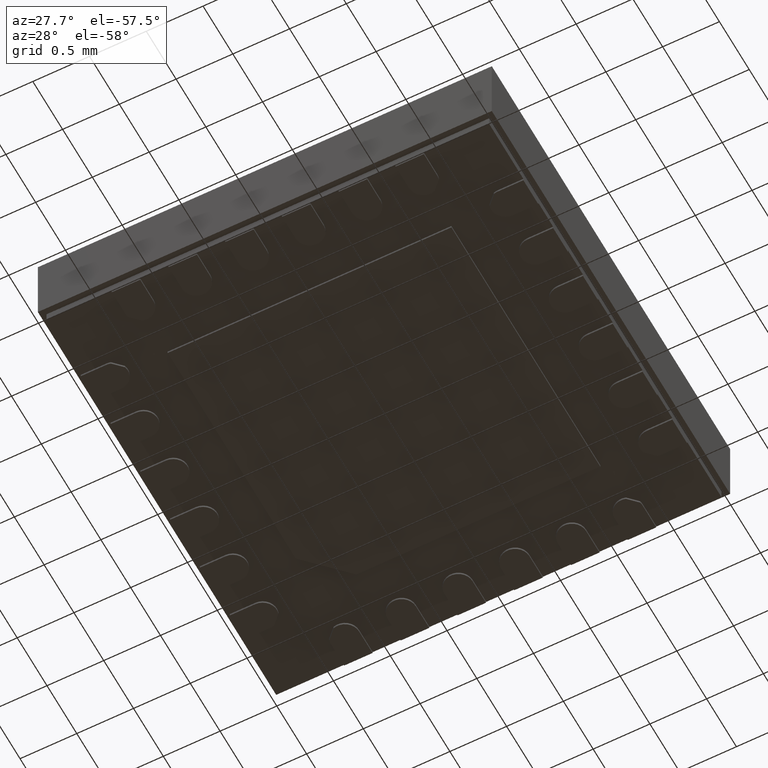
[diagram: clean part render]
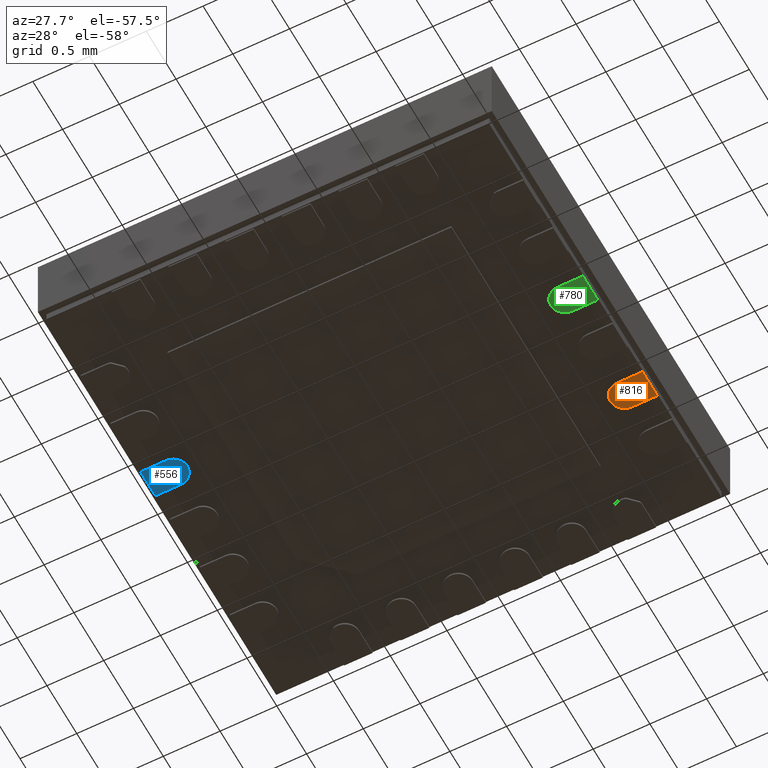
[diagram: same view with three faces highlighted in distinct colors, each labeled with its STEP entity id]
A machine part, auxiliary view with three faces highlighted in distinct colors.
Their STEP definitions:

[orange] entity #816 — the highlighted planar face has unit normal (0, 0, 1).
#816=ADVANCED_FACE('',(#1842),#1843,.F.);
#1842=FACE_OUTER_BOUND('',#3143,.T.);
#1843=PLANE('',#3144);
#3143=EDGE_LOOP('',(#5167,#5168,#5169,#5170));
#3144=AXIS2_PLACEMENT_3D('',#5171,#5172,#5173);
#5167=ORIENTED_EDGE('',*,*,#8023,.T.);
#5168=ORIENTED_EDGE('',*,*,#8029,.F.);
#5169=ORIENTED_EDGE('',*,*,#8036,.F.);
#5170=ORIENTED_EDGE('',*,*,#8038,.F.);
#5171=CARTESIAN_POINT('',(1.80919142727702,0.7612165452818,0.0));
#5172=DIRECTION('',(0.0,0.0,1.0));
#5173=DIRECTION('',(1.0,0.0,0.0));
#8023=EDGE_CURVE('',#9680,#9678,#9681,.T.);
#8029=EDGE_CURVE('',#9688,#9678,#9690,.T.);
#8036=EDGE_CURVE('',#9698,#9688,#9700,.T.);
#8038=EDGE_CURVE('',#9680,#9698,#9702,.T.);
#9678=VERTEX_POINT('',#12078);
#9680=VERTEX_POINT('',#12081);
#9681=LINE('',#12082,#12083);
#9688=VERTEX_POINT('',#12093);
#9690=LINE('',#12096,#12097);
#9698=VERTEX_POINT('',#12107);
#9700=CIRCLE('',#12110,0.125);
#9702=LINE('',#12112,#12113);
#12078=CARTESIAN_POINT('',(1.93878337008871,0.636216545281772,0.0));
#12081=CARTESIAN_POINT('',(1.93878337008871,0.886216545281828,0.0));
#12082=CARTESIAN_POINT('',(1.93878337008871,0.386216545280948,0.0));
#12083=VECTOR('',#14519,1.0);
#12093=CARTESIAN_POINT('',(1.71378337008698,0.636216545281772,0.0));
#12096=CARTESIAN_POINT('',(1.71378337008698,0.636216545281772,0.0));
#12097=VECTOR('',#14524,1.0);
#12107=CARTESIAN_POINT('',(1.71378337008698,0.886216545281828,0.0));
#12110=AXIS2_PLACEMENT_3D('',#14531,#14532,#14533);
#12112=CARTESIAN_POINT('',(1.98878337008866,0.886216545281828,0.0));
#12113=VECTOR('',#14534,1.0);
#14519=DIRECTION('',(0.0,-1.0,0.0));
#14524=DIRECTION('',(1.0,0.0,0.0));
#14531=CARTESIAN_POINT('',(1.71378337008698,0.761216545281829,0.0));
#14532=DIRECTION('',(0.0,-0.0,1.0));
#14533=DIRECTION('',(3.55271367880051E-15,1.0,0.0));
#14534=DIRECTION('',(-1.0,0.0,0.0));

[blue] entity #556 — the highlighted planar face has unit normal (0, 0, 1).
#556=ADVANCED_FACE('',(#1465),#1466,.F.);
#1465=FACE_OUTER_BOUND('',#2779,.T.);
#1466=PLANE('',#2780);
#2779=EDGE_LOOP('',(#4146,#4147,#4148,#4149));
#2780=AXIS2_PLACEMENT_3D('',#4150,#4151,#4152);
#4146=ORIENTED_EDGE('',*,*,#7637,.T.);
#4147=ORIENTED_EDGE('',*,*,#7643,.F.);
#4148=ORIENTED_EDGE('',*,*,#7644,.F.);
#4149=ORIENTED_EDGE('',*,*,#7645,.F.);
#4150=CARTESIAN_POINT('',(-1.83162468709969,-0.23878345472144,0.0));
#4151=DIRECTION('',(0.0,0.0,1.0));
#4152=DIRECTION('',(1.0,0.0,0.0));
#7637=EDGE_CURVE('',#9115,#9119,#9121,.T.);
#7643=EDGE_CURVE('',#9129,#9119,#9130,.T.);
#7644=EDGE_CURVE('',#9131,#9129,#9132,.T.);
#7645=EDGE_CURVE('',#9115,#9131,#9133,.T.);
#9115=VERTEX_POINT('',#11287);
#9119=VERTEX_POINT('',#11293);
#9121=LINE('',#11296,#11297);
#9129=VERTEX_POINT('',#11308);
#9130=LINE('',#11309,#11310);
#9131=VERTEX_POINT('',#11311);
#9132=CIRCLE('',#11312,0.125);
#9133=LINE('',#11313,#11314);
#11287=CARTESIAN_POINT('',(-1.96121662991138,-0.363783454721468,0.0));
#11293=CARTESIAN_POINT('',(-1.96121662991138,-0.113783454721412,0.0));
#11296=CARTESIAN_POINT('',(-1.96121662991138,-0.113783454720673,0.0));
#11297=VECTOR('',#14191,1.0);
#11308=CARTESIAN_POINT('',(-1.73621662990965,-0.113783454721411,0.0));
#11309=CARTESIAN_POINT('',(-1.73621662990965,-0.113783454721411,0.0));
#11310=VECTOR('',#14195,1.0);
#11311=CARTESIAN_POINT('',(-1.73621662990965,-0.363783454721468,0.0));
#11312=AXIS2_PLACEMENT_3D('',#14196,#14197,#14198);
#11313=CARTESIAN_POINT('',(-2.01121662991133,-0.363783454721468,0.0));
#11314=VECTOR('',#14199,1.0);
#14191=DIRECTION('',(0.0,1.0,0.0));
#14195=DIRECTION('',(-1.0,-8.07434926995174E-16,0.0));
#14196=CARTESIAN_POINT('',(-1.73621662990965,-0.238783454721469,0.0));
#14197=DIRECTION('',(0.0,0.0,1.0));
#14198=DIRECTION('',(0.0,-1.0,0.0));
#14199=DIRECTION('',(1.0,0.0,0.0));

[green] entity #780 — the highlighted planar face has unit normal (0, 0, 1).
#780=ADVANCED_FACE('',(#1790),#1791,.F.);
#1790=FACE_OUTER_BOUND('',#3093,.T.);
#1791=PLANE('',#3094);
#3093=EDGE_LOOP('',(#5029,#5030,#5031,#5032));
#3094=AXIS2_PLACEMENT_3D('',#5033,#5034,#5035);
#5029=ORIENTED_EDGE('',*,*,#7969,.T.);
#5030=ORIENTED_EDGE('',*,*,#7975,.F.);
#5031=ORIENTED_EDGE('',*,*,#7982,.F.);
#5032=ORIENTED_EDGE('',*,*,#7984,.F.);
#5033=CARTESIAN_POINT('',(1.80919142727702,-0.2387834547182,0.0));
#5034=DIRECTION('',(0.0,0.0,1.0));
#5035=DIRECTION('',(1.0,0.0,0.0));
#7969=EDGE_CURVE('',#9602,#9600,#9603,.T.);
#7975=EDGE_CURVE('',#9610,#9600,#9612,.T.);
#7982=EDGE_CURVE('',#9620,#9610,#9622,.T.);
#7984=EDGE_CURVE('',#9602,#9620,#9624,.T.);
#9600=VERTEX_POINT('',#11968);
#9602=VERTEX_POINT('',#11971);
#9603=LINE('',#11972,#11973);
#9610=VERTEX_POINT('',#11983);
#9612=LINE('',#11986,#11987);
#9620=VERTEX_POINT('',#11997);
#9622=CIRCLE('',#12000,0.125);
#9624=LINE('',#12002,#12003);
#11968=CARTESIAN_POINT('',(1.93878337008871,-0.363783454718228,0.0));
#11971=CARTESIAN_POINT('',(1.93878337008871,-0.113783454718171,0.0));
#11972=CARTESIAN_POINT('',(1.93878337008871,-0.113783454719052,0.0));
#11973=VECTOR('',#14475,1.0);
#11983=CARTESIAN_POINT('',(1.71378337008698,-0.363783454718228,0.0));
#11986=CARTESIAN_POINT('',(1.71378337008698,-0.363783454718228,0.0));
#11987=VECTOR('',#14480,1.0);
#11997=CARTESIAN_POINT('',(1.71378337008698,-0.113783454718172,0.0));
#12000=AXIS2_PLACEMENT_3D('',#14487,#14488,#14489);
#12002=CARTESIAN_POINT('',(1.98878337008867,-0.113783454718172,0.0));
#12003=VECTOR('',#14490,1.0);
#14475=DIRECTION('',(0.0,-1.0,0.0));
#14480=DIRECTION('',(1.0,8.07434926995173E-16,0.0));
#14487=CARTESIAN_POINT('',(1.71378337008698,-0.238783454718171,0.0));
#14488=DIRECTION('',(0.0,-0.0,1.0));
#14489=DIRECTION('',(0.0,1.0,0.0));
#14490=DIRECTION('',(-1.0,0.0,0.0));